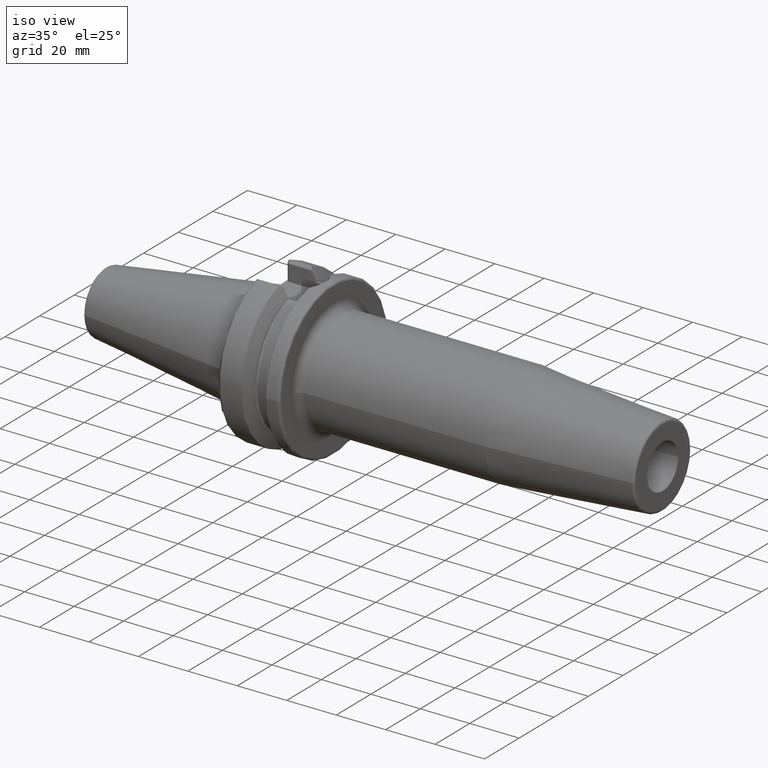
[diagram: clean part render]
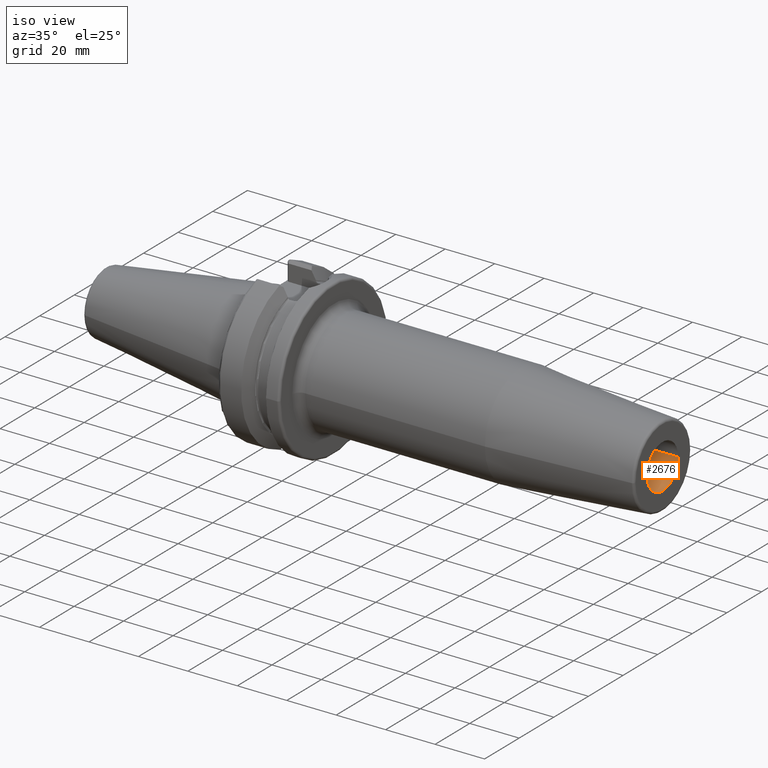
[diagram: same view with one face highlighted and labeled with its STEP entity id]
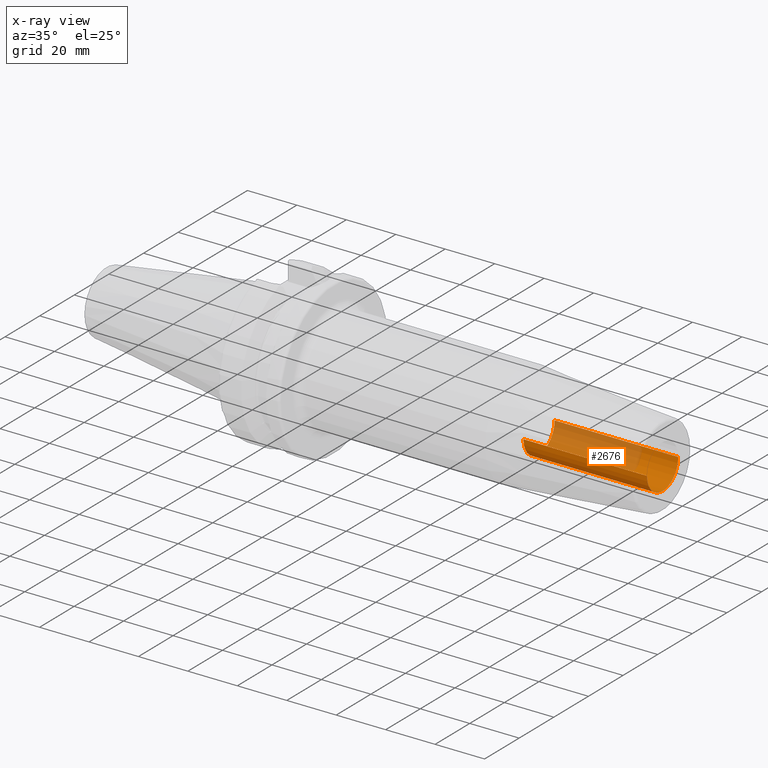
[diagram: x-ray of the same camera — body ghosted, the highlighted face saturated]
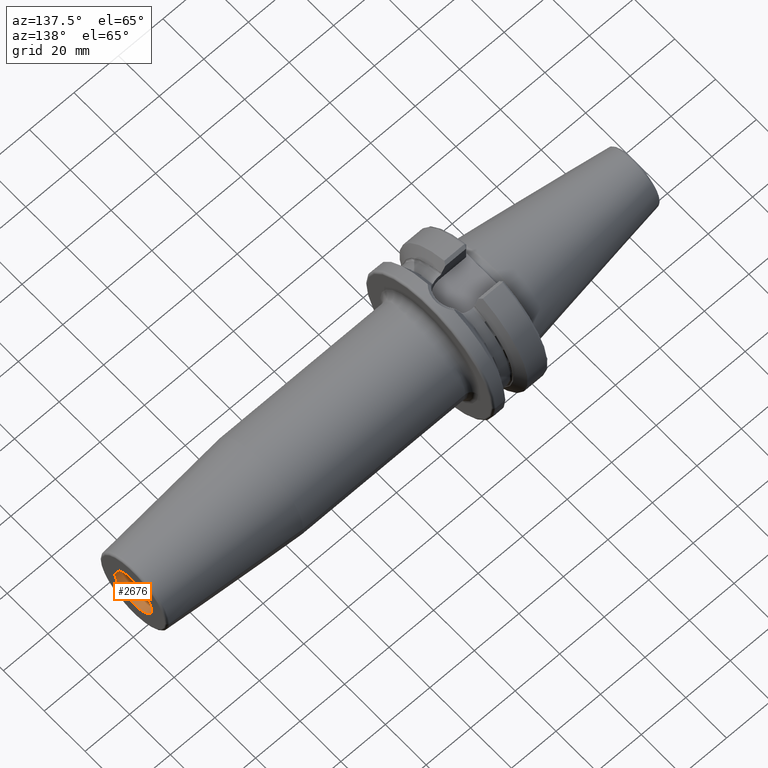
[diagram: same view with one face highlighted and labeled with its STEP entity id]
A machine part, iso view. The second image highlights one B-rep face of the part: STEP entity #2676.
The next image is the same camera in x-ray: the body ghosted, the highlighted face saturated — about 45% of this face is hidden behind the body in this view.
A second angle (auxiliary view) of the same face is appended — the face is thin or edge-on in the first view.
In plain terms, the highlighted cylindrical surface (edge-blend (fillet) strip) has radius 9 mm, axis along (1, 0, 0).
Its self-contained STEP definition (entity closure, byte-faithful):
#927=CARTESIAN_POINT('',(1.6E2,0.E0,0.E0));
#928=DIRECTION('',(1.E0,0.E0,0.E0));
#929=DIRECTION('',(0.E0,-1.E0,0.E0));
#930=AXIS2_PLACEMENT_3D('',#927,#928,#929);
#932=DIRECTION('',(-1.E0,0.E0,0.E0));
#933=VECTOR('',#932,5.E1);
#934=CARTESIAN_POINT('',(1.6E2,9.E0,0.E0));
#935=LINE('',#934,#933);
#936=DIRECTION('',(-1.E0,0.E0,0.E0));
#937=VECTOR('',#936,5.E1);
#938=CARTESIAN_POINT('',(1.6E2,-9.E0,0.E0));
#939=LINE('',#938,#937);
#940=CARTESIAN_POINT('',(1.1E2,0.E0,0.E0));
#941=DIRECTION('',(-1.E0,0.E0,0.E0));
#942=DIRECTION('',(0.E0,1.E0,0.E0));
#943=AXIS2_PLACEMENT_3D('',#940,#941,#942);
#1393=CARTESIAN_POINT('',(1.1E2,9.E0,0.E0));
#1394=CARTESIAN_POINT('',(1.1E2,-9.E0,0.E0));
#1395=VERTEX_POINT('',#1393);
#1396=VERTEX_POINT('',#1394);
#1397=CARTESIAN_POINT('',(1.6E2,9.E0,0.E0));
#1398=VERTEX_POINT('',#1397);
#1399=CARTESIAN_POINT('',(1.6E2,-9.E0,0.E0));
#1400=VERTEX_POINT('',#1399);
#2664=CARTESIAN_POINT('',(1.075E2,0.E0,0.E0));
#2665=DIRECTION('',(1.E0,0.E0,0.E0));
#2666=DIRECTION('',(0.E0,-1.E0,0.E0));
#2667=AXIS2_PLACEMENT_3D('',#2664,#2665,#2666);
#2668=CYLINDRICAL_SURFACE('',#2667,9.E0);
#2669=ORIENTED_EDGE('',*,*,#2654,.F.);
#2670=ORIENTED_EDGE('',*,*,#2644,.F.);
#2671=ORIENTED_EDGE('',*,*,#2658,.T.);
#2673=ORIENTED_EDGE('',*,*,#2672,.F.);
#2674=EDGE_LOOP('',(#2669,#2670,#2671,#2673));
#2675=FACE_OUTER_BOUND('',#2674,.F.);
#2676=ADVANCED_FACE('',(#2675),#2668,.F.);
#931=CIRCLE('',#930,9.E0);
#944=CIRCLE('',#943,9.E0);
#2644=EDGE_CURVE('',#1400,#1398,#931,.T.);
#2654=EDGE_CURVE('',#1398,#1395,#935,.T.);
#2658=EDGE_CURVE('',#1400,#1396,#939,.T.);
#2672=EDGE_CURVE('',#1395,#1396,#944,.T.);